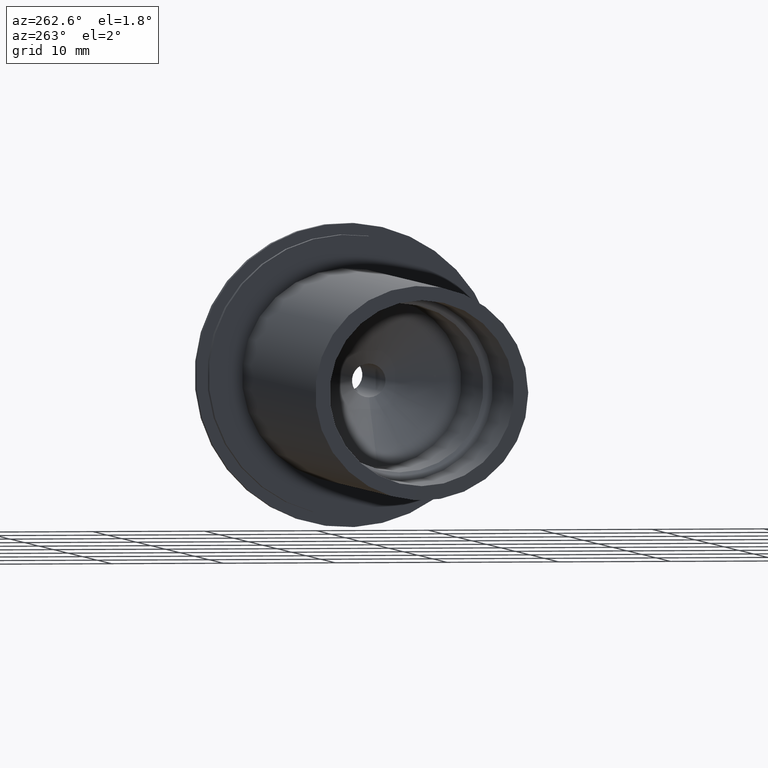
[diagram: clean part render]
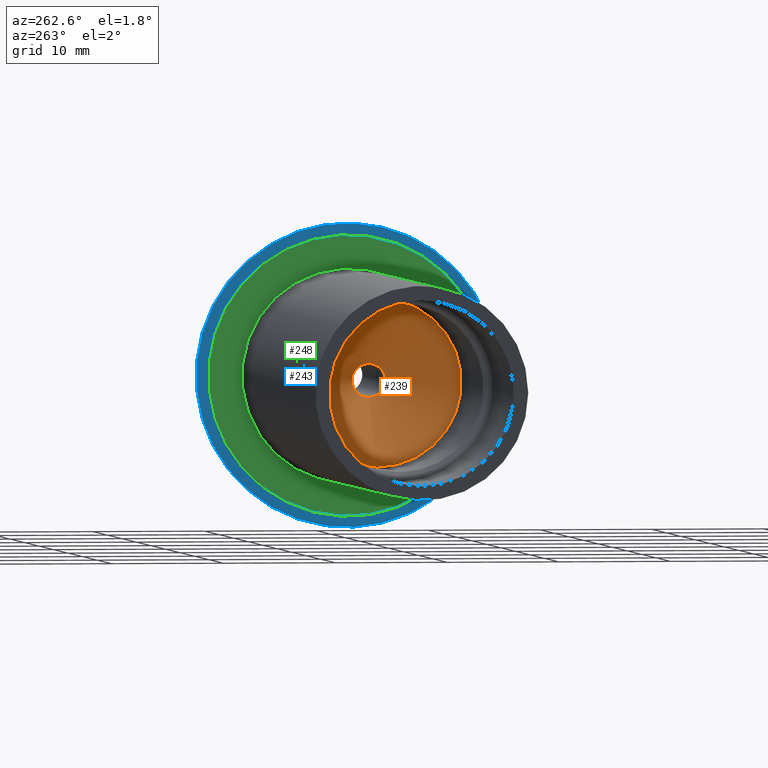
[diagram: same view with three faces highlighted in distinct colors, each labeled with its STEP entity id]
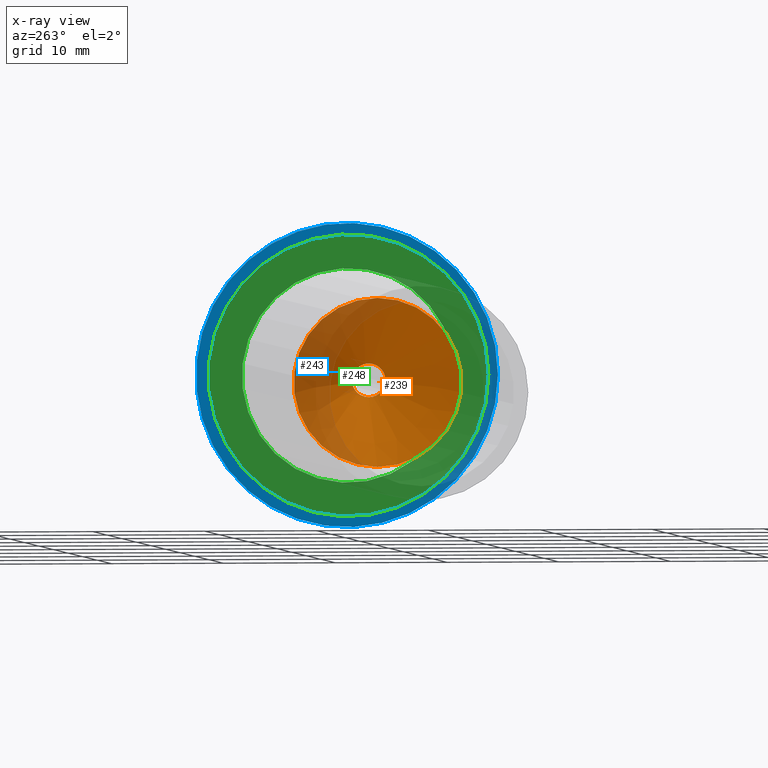
[diagram: x-ray of the same camera — body ghosted, the three highlighted faces saturated]
A machine part, auxiliary view with three faces highlighted in distinct colors.
The next image is the same camera in x-ray (body ghosted, the three faces saturated) — at least one of them is partly hidden behind the body in this view.
Their STEP definitions:

[orange] entity #239 — the highlighted conical surface has half-angle 45 deg.
#94=CONICAL_SURFACE('',#277,3.75,0.785398163397448);
#97=FACE_OUTER_BOUND('',#109,.T.);
#109=EDGE_LOOP('',(#195,#196,#197,#198,#199));
#125=LINE('',#418,#133);
#133=VECTOR('',#329,3.75);
#141=CIRCLE('',#275,1.5);
#142=CIRCLE('',#276,1.5);
#143=CIRCLE('',#278,7.5);
#157=VERTEX_POINT('',#410);
#158=VERTEX_POINT('',#412);
#159=VERTEX_POINT('',#416);
#171=EDGE_CURVE('',#158,#157,#141,.T.);
#172=EDGE_CURVE('',#157,#158,#142,.T.);
#173=EDGE_CURVE('',#159,#159,#143,.T.);
#174=EDGE_CURVE('',#159,#158,#125,.T.);
#195=ORIENTED_EDGE('',*,*,#173,.T.);
#196=ORIENTED_EDGE('',*,*,#174,.T.);
#197=ORIENTED_EDGE('',*,*,#171,.T.);
#198=ORIENTED_EDGE('',*,*,#172,.T.);
#199=ORIENTED_EDGE('',*,*,#174,.F.);
#239=ADVANCED_FACE('',(#97),#94,.F.);
#275=AXIS2_PLACEMENT_3D('',#413,#321,#322);
#276=AXIS2_PLACEMENT_3D('',#414,#323,#324);
#277=AXIS2_PLACEMENT_3D('',#415,#325,#326);
#278=AXIS2_PLACEMENT_3D('',#417,#327,#328);
#321=DIRECTION('center_axis',(1.,0.,0.));
#322=DIRECTION('ref_axis',(0.,0.,-1.));
#323=DIRECTION('center_axis',(1.,0.,0.));
#324=DIRECTION('ref_axis',(0.,0.,-1.));
#325=DIRECTION('center_axis',(-1.,0.,0.));
#326=DIRECTION('ref_axis',(0.,0.,1.));
#327=DIRECTION('center_axis',(-1.,0.,0.));
#328=DIRECTION('ref_axis',(0.,0.,1.));
#329=DIRECTION('',(0.707106781186547,8.65956056235493E-17,0.707106781186547));
#410=CARTESIAN_POINT('',(-16.,-1.83697019872103E-16,1.5));
#412=CARTESIAN_POINT('',(-16.,-1.83697019872103E-16,-1.5));
#413=CARTESIAN_POINT('Origin',(-16.,0.,0.));
#414=CARTESIAN_POINT('Origin',(-16.,0.,0.));
#415=CARTESIAN_POINT('Origin',(-18.25,0.,0.));
#416=CARTESIAN_POINT('',(-22.,-9.18485099360515E-16,-7.5));
#417=CARTESIAN_POINT('Origin',(-22.,0.,0.));
#418=CARTESIAN_POINT('',(-18.25,-4.59242549680257E-16,-3.75));

[blue] entity #243 — the highlighted planar face has unit normal (-1, 0, 0).
#86=FACE_BOUND('',#114,.T.);
#90=PLANE('',#285);
#101=FACE_OUTER_BOUND('',#113,.T.);
#113=EDGE_LOOP('',(#212));
#114=EDGE_LOOP('',(#213));
#147=CIRCLE('',#286,13.5);
#148=CIRCLE('',#287,12.5);
#163=VERTEX_POINT('',#432);
#164=VERTEX_POINT('',#434);
#181=EDGE_CURVE('',#163,#163,#147,.T.);
#182=EDGE_CURVE('',#164,#164,#148,.T.);
#212=ORIENTED_EDGE('',*,*,#181,.F.);
#213=ORIENTED_EDGE('',*,*,#182,.T.);
#243=ADVANCED_FACE('',(#101,#86),#90,.T.);
#285=AXIS2_PLACEMENT_3D('',#431,#345,#346);
#286=AXIS2_PLACEMENT_3D('',#433,#347,#348);
#287=AXIS2_PLACEMENT_3D('',#435,#349,#350);
#345=DIRECTION('center_axis',(-1.,0.,0.));
#346=DIRECTION('ref_axis',(0.,0.,1.));
#347=DIRECTION('center_axis',(1.,0.,0.));
#348=DIRECTION('ref_axis',(0.,0.,-1.));
#349=DIRECTION('center_axis',(1.,0.,0.));
#350=DIRECTION('ref_axis',(0.,0.,-1.));
#431=CARTESIAN_POINT('Origin',(-0.999999999999996,13.5,0.));
#432=CARTESIAN_POINT('',(-0.999999999999996,-13.5,-1.65327317884893E-15));
#433=CARTESIAN_POINT('Origin',(-0.999999999999996,0.,0.));
#434=CARTESIAN_POINT('',(-0.999999999999996,-12.5,-1.53080849893419E-15));
#435=CARTESIAN_POINT('Origin',(-0.999999999999996,0.,0.));

[green] entity #248 — the highlighted planar face has unit normal (-1, 0, 0).
#89=FACE_BOUND('',#122,.T.);
#93=PLANE('',#295);
#106=FACE_OUTER_BOUND('',#121,.T.);
#121=EDGE_LOOP('',(#226));
#122=EDGE_LOOP('',(#227));
#151=CIRCLE('',#294,9.525);
#152=CIRCLE('',#296,12.5);
#167=VERTEX_POINT('',#445);
#168=VERTEX_POINT('',#449);
#186=EDGE_CURVE('',#167,#167,#151,.T.);
#188=EDGE_CURVE('',#168,#168,#152,.T.);
#226=ORIENTED_EDGE('',*,*,#188,.F.);
#227=ORIENTED_EDGE('',*,*,#186,.T.);
#248=ADVANCED_FACE('',(#106,#89),#93,.T.);
#294=AXIS2_PLACEMENT_3D('',#446,#364,#365);
#295=AXIS2_PLACEMENT_3D('',#448,#367,#368);
#296=AXIS2_PLACEMENT_3D('',#450,#369,#370);
#364=DIRECTION('center_axis',(1.,0.,0.));
#365=DIRECTION('ref_axis',(0.,0.,-1.));
#367=DIRECTION('center_axis',(-1.,0.,0.));
#368=DIRECTION('ref_axis',(0.,0.,1.));
#369=DIRECTION('center_axis',(1.,0.,0.));
#370=DIRECTION('ref_axis',(0.,0.,-1.));
#445=CARTESIAN_POINT('',(-2.,-9.525,-1.16647607618785E-15));
#446=CARTESIAN_POINT('Origin',(-2.,0.,0.));
#448=CARTESIAN_POINT('Origin',(-2.,12.5,0.));
#449=CARTESIAN_POINT('',(-2.,-12.5,-1.53080849893419E-15));
#450=CARTESIAN_POINT('Origin',(-2.,0.,0.));